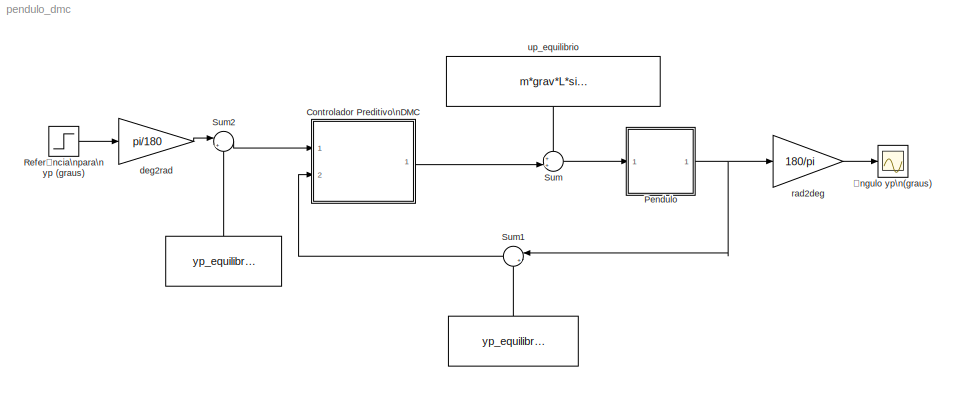
MODEL pendulo_dmc
KIND model
BLOCK [Constant]  
  SID = 24
  Value = yp_equilibrio
BLOCK [Constant]   
  SID = 25
  Value = yp_equilibrio
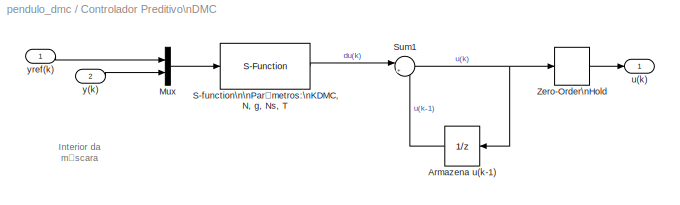
BLOCK [SubSystem] Controlador Preditivo\nDMC
  FunctionWithSeparateData = off
  MaskCallbackString = ||||
  MaskEnableString = on,on,on,on,on
  MaskHideContents = off
  MaskIconFrame = on
  MaskIconOpaque = on
  MaskIconRotate = none
  MaskIconUnits = autoscale
  MaskInitialization = Ns = length(g);\ngaux = g;\nif N > Ns\n    gaux(Ns+1:N) = g(Ns);\nend\ncol = gaux(1:N);\nrow = [gaux(1) zeros(1,N-1)];\nG = toeplitz(col,row);\nG = G(:,1:M);\nGAIN = inv(G'*G + rho*eye(M))*G';\nKDMC = GAIN(1,:);
  MaskPortRotate = default
  MaskPromptString = Peso do controle (rho)|Horizonte de Predição (N)|Horizonte de Controle (M)|Resposta a degrau da planta (g)|Período de amostragem (T)
  MaskStyleString = edit,edit,edit,edit,edit
  MaskToolTipString = on,on,on,on,on
  MaskTunableValueString = on,on,on,on,on
  MaskValueString = 0.3|50|10|g|T
  MaskVariables = rho=@1;N=@2;M=@3;g=@4;T=@5;
  MaskVisibilityString = on,on,on,on,on
  MinAlgLoopOccurrences = off
  Opaque = off
  Ports = [2, 1]
  PropExecContextOutsideSubsystem = off
  RTWSystemCode = Auto
  RequestExecContextInheritance = off
  SID = 40
BLOCK [UnitDelay] Controlador Preditivo\nDMC/Armazena u(k-1)
  SID = 43
  SampleTime = T
BLOCK [Mux] Controlador Preditivo\nDMC/Mux
  DisplayOption = bar
  Inputs = 2
  Ports = [2, 1]
  SID = 44
BLOCK [S-Function] Controlador Preditivo\nDMC/S-function\n\nParâmetros:\nKDMC, N, g, Ns, T
  EnableBusSupport = off
  FunctionName = dmc
  Parameters = KDMC,N,g,Ns,T
  Ports = [1, 1]
  SID = 45
BLOCK [Sum] Controlador Preditivo\nDMC/Sum1
  IconShape = round
  Inputs = |++
  Ports = [2, 1]
  SID = 46
BLOCK [ZeroOrderHold] Controlador Preditivo\nDMC/Zero-Order\nHold
  SID = 47
  SampleTime = T
BLOCK [Outport] Controlador Preditivo\nDMC/u(k)
  IconDisplay = Port number
  SID = 48
BLOCK [Inport] Controlador Preditivo\nDMC/y(k)
  IconDisplay = Port number
  Port = 2
  SID = 42
BLOCK [Inport] Controlador Preditivo\nDMC/yref(k)
  IconDisplay = Port number
  SID = 41
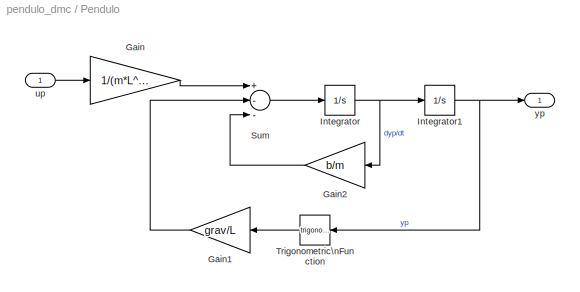
BLOCK [SubSystem] Pendulo
  FunctionWithSeparateData = off
  MaskCallbackString = ||||
  MaskEnableString = on,on,on,on,on
  MaskHideContents = off
  MaskIconFrame = on
  MaskIconOpaque = on
  MaskIconRotate = none
  MaskIconUnits = autoscale
  MaskPortRotate = default
  MaskPromptString = m (kg)|L (m)|grav (m/s^2)|b (Ns/(m*rad))|theta inicial (rad)
  MaskStyleString = edit,edit,edit,edit,edit
  MaskToolTipString = on,on,on,on,on
  MaskTunableValueString = on,on,on,on,on
  MaskValueString = m|L|grav|b|yp_equilibrio
  MaskVariables = m=@1;L=@2;grav=@3;b=@4;theta0=@5;
  MaskVisibilityString = on,on,on,on,on
  MinAlgLoopOccurrences = off
  Opaque = off
  Ports = [1, 1]
  PropExecContextOutsideSubsystem = off
  RTWSystemCode = Auto
  RequestExecContextInheritance = off
  SID = 30
BLOCK [Gain] Pendulo/Gain
  Gain = 1/(m*L^2)
  SID = 32
BLOCK [Gain] Pendulo/Gain1
  Gain = grav/L
  SID = 33
BLOCK [Gain] Pendulo/Gain2
  Gain = b/m
  SID = 34
BLOCK [Integrator] Pendulo/Integrator
  Ports = [1, 1]
  SID = 35
BLOCK [Integrator] Pendulo/Integrator1
  InitialCondition = theta0
  Ports = [1, 1]
  SID = 36
BLOCK [Sum] Pendulo/Sum
  InputSameDT = off
  Inputs = +--
  OutDataTypeStr = Inherit: Inherit via internal rule
  Ports = [3, 1]
  SID = 37
BLOCK [Trigonometry] Pendulo/Trigonometric\nFunction
  Ports = [1, 1]
  SID = 38
BLOCK [Inport] Pendulo/up
  IconDisplay = Port number
  SID = 31
BLOCK [Outport] Pendulo/yp
  IconDisplay = Port number
  SID = 39
BLOCK [Step] Referência\npara\nyp (graus)
  After = (yp_equilibrio*180/pi) + 10
  Before = yp_equilibrio*180/pi
  SID = 20
  SampleTime = 0
  Time = 10
BLOCK [Sum] Sum
  IconShape = round
  InputSameDT = off
  Inputs = ++|
  OutDataTypeStr = Inherit: Inherit via internal rule
  Ports = [2, 1]
  SID = 21
BLOCK [Sum] Sum1
  IconShape = round
  InputSameDT = off
  Inputs = |+-
  OutDataTypeStr = Inherit: Inherit via internal rule
  Ports = [2, 1]
  SID = 22
BLOCK [Sum] Sum2
  IconShape = round
  InputSameDT = off
  Inputs = |+-
  OutDataTypeStr = Inherit: Inherit via internal rule
  Ports = [2, 1]
  SID = 23
BLOCK [Gain] deg2rad
  Gain = pi/180
  SID = 26
BLOCK [Gain] rad2deg
  Gain = 180/pi
  SID = 27
BLOCK [Constant] up_equilibrio
  SID = 28
  Value = m*grav*L*sin(yp_equilibrio)
BLOCK [Scope] Ângulo yp\n(graus)
  Floating = off
  LimitDataPoints = off
  NumInputPorts = 1
  Ports = [1]
  SID = 29
  SaveName = y
  ShowLegends = off
  TimeRange = 20
  YMax = 72
  YMin = 58
  ZoomMode = yonly
ANNOTATION Controlador Preditivo\nDMC: Interior da\nmáscara
LINE   :1 -> Sum2:2
LINE  :1 -> Sum1:2
LINE Controlador Preditivo\nDMC/Armazena u(k-1):1 -> Controlador Preditivo\nDMC/Sum1:2
LINE Controlador Preditivo\nDMC/Mux:1 -> Controlador Preditivo\nDMC/S-function\n\nParâmetros:\nKDMC, N, g, Ns, T:1
LINE Controlador Preditivo\nDMC/S-function\n\nParâmetros:\nKDMC, N, g, Ns, T:1 -> Controlador Preditivo\nDMC/Sum1:1
NET Controlador Preditivo\nDMC/Sum1:1 -> Controlador Preditivo\nDMC/Armazena u(k-1):1, Controlador Preditivo\nDMC/Zero-Order\nHold:1
LINE Controlador Preditivo\nDMC/Zero-Order\nHold:1 -> Controlador Preditivo\nDMC/u(k):1
LINE Controlador Preditivo\nDMC/y(k):1 -> Controlador Preditivo\nDMC/Mux:2
LINE Controlador Preditivo\nDMC/yref(k):1 -> Controlador Preditivo\nDMC/Mux:1
LINE Controlador Preditivo\nDMC:1 -> Sum:2
LINE Pendulo/Gain1:1 -> Pendulo/Sum:2
LINE Pendulo/Gain2:1 -> Pendulo/Sum:3
LINE Pendulo/Gain:1 -> Pendulo/Sum:1
NET Pendulo/Integrator1:1 -> Pendulo/Trigonometric\nFunction:1, Pendulo/yp:1
NET Pendulo/Integrator:1 -> Pendulo/Gain2:1, Pendulo/Integrator1:1
LINE Pendulo/Sum:1 -> Pendulo/Integrator:1
LINE Pendulo/Trigonometric\nFunction:1 -> Pendulo/Gain1:1
LINE Pendulo/up:1 -> Pendulo/Gain:1
NET Pendulo:1 -> Sum1:1, rad2deg:1
LINE Referência\npara\nyp (graus):1 -> deg2rad:1
LINE Sum1:1 -> Controlador Preditivo\nDMC:2
LINE Sum2:1 -> Controlador Preditivo\nDMC:1
LINE Sum:1 -> Pendulo:1
LINE deg2rad:1 -> Sum2:1
LINE rad2deg:1 -> Ângulo yp\n(graus):1
LINE up_equilibrio:1 -> Sum:1
note: NET lines group one-source signal fan-out (src -> all destinations, sorted); 1:1 wires keep LINE
